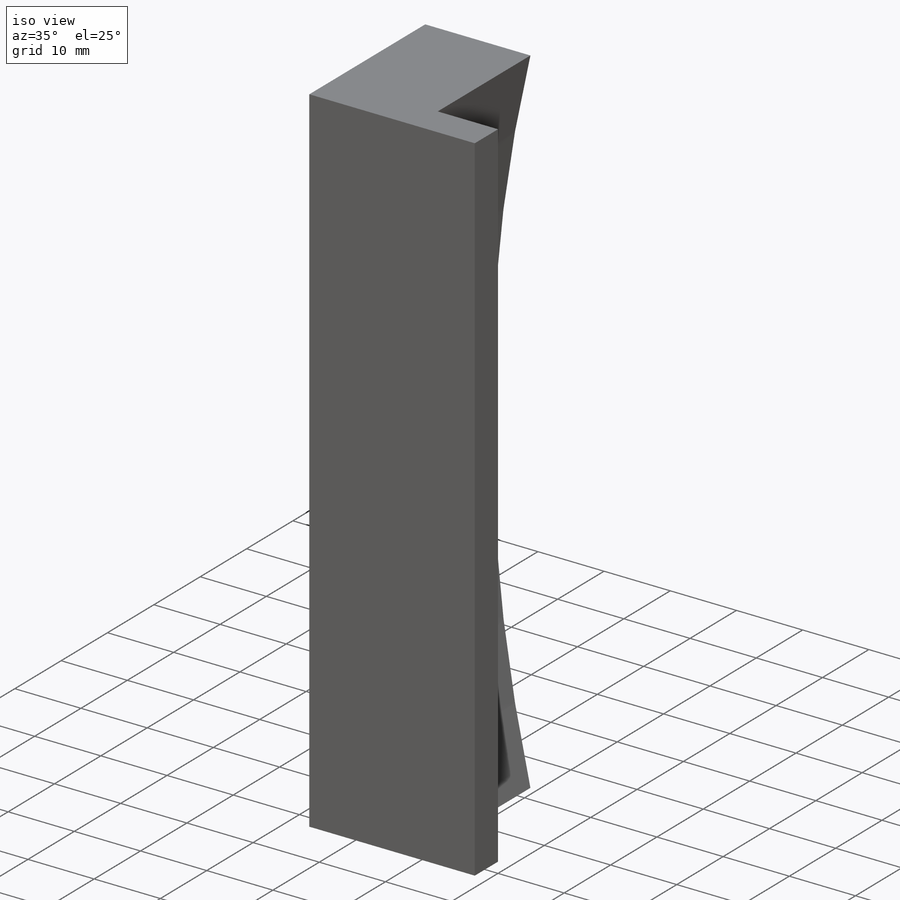
[diagram: iso view]
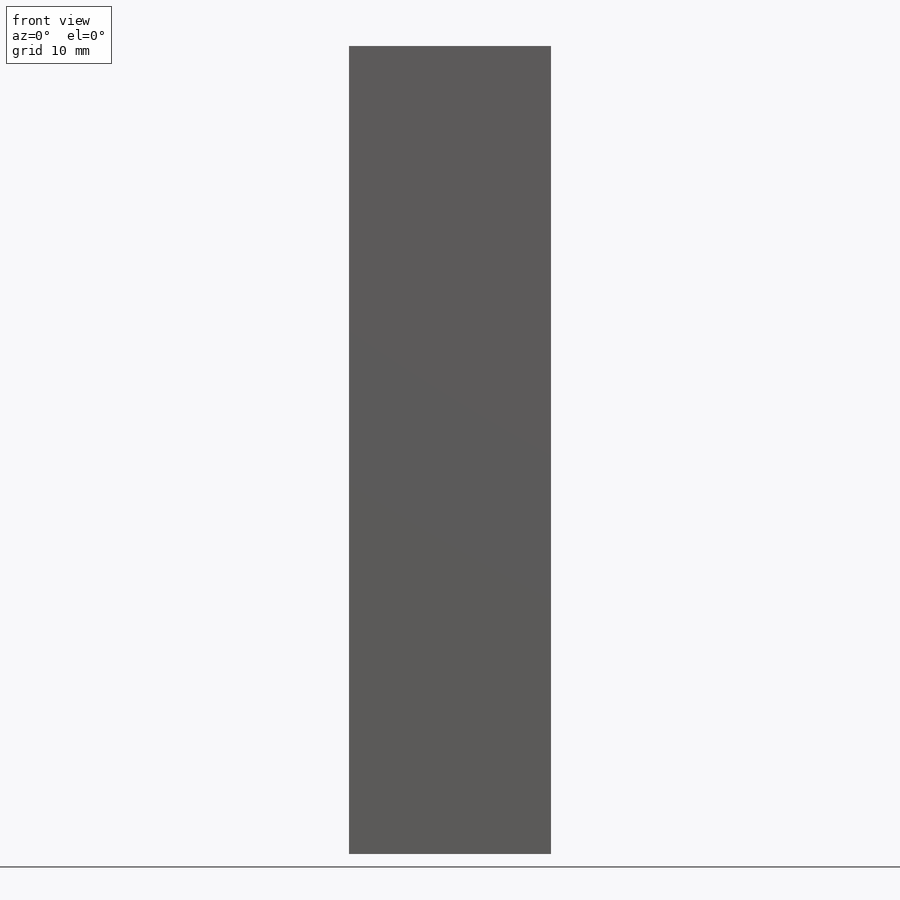
[diagram: front view]
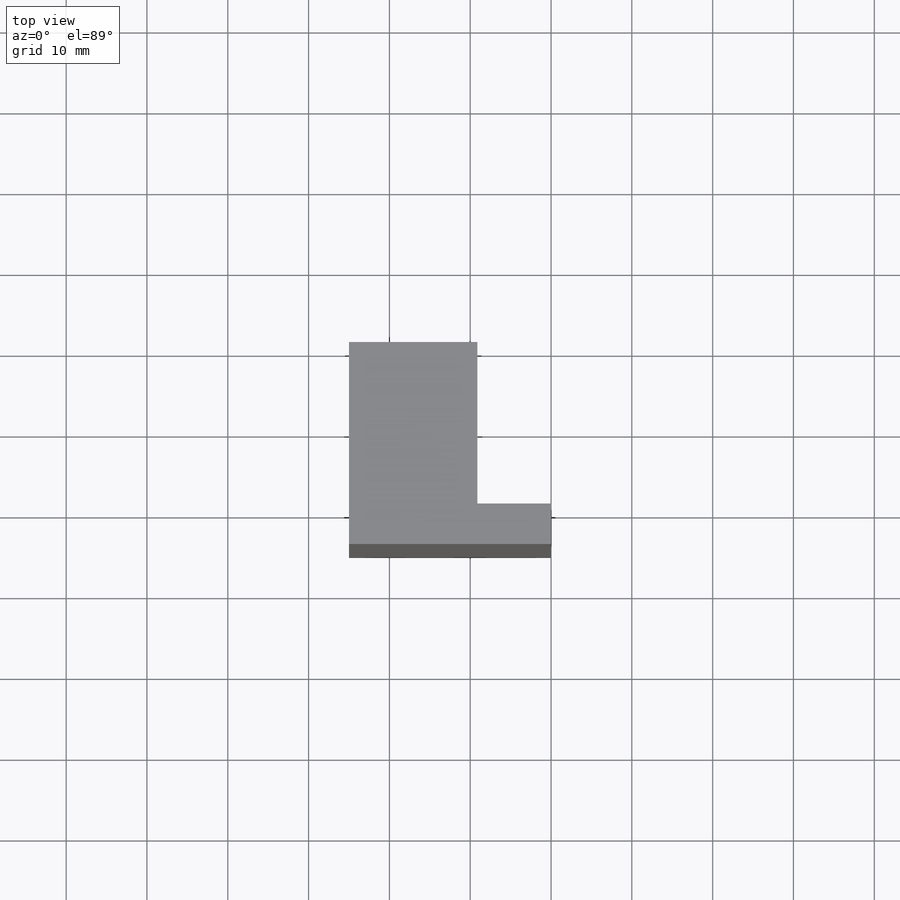
[diagram: top view]
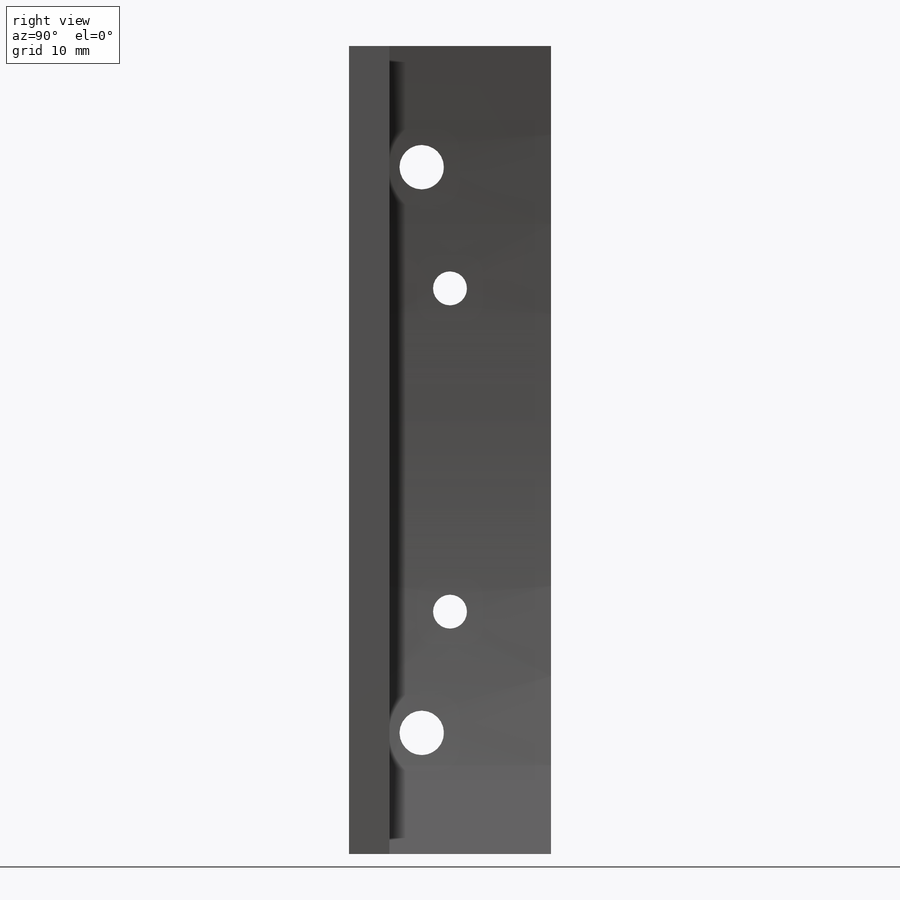
[diagram: right view]
SOLIDWORKS PART (.sldprt)
format: sldprt  version: not decoded by parser v0  size: 269,824 bytes
history: native  units: mm
features: sketch x8, plane x3, hole x3, extrude x2, thread x2, material x1 (+13 scaffold rows collapsed)
feature tree (32):
  scaffold x13  (default folders/planes/origin — collapsed)
  material  "3.1325 (EN-AW 2017A)"
  plane  "Plan de face"
  plane  "Plan de dessus"
  plane  "Plan de droite"
  sketch  "Esquisse1"  dims[D1=50.0mm D2=100.0mm D3=225.0mm]
  extrude  "Boss.-Extru.1"  Depth=20mm
  sketch  "Esquisse9"  dims[D1=25.0mm]
  extrude  "Boss.-Extru.2"  Depth=5mm
  hole  "Chambrage pour vis à tête hexagonale M53"  Diameter=5.5mm Depth=25.000025mm
  sketch  "Esquisse11"  dims[D1=35.0mm D2=16.0mm]
  sketch  "Esquisse10"  dims[hole-wizard template sketch: 42 standard entries collapsed; hole parameters kept: c12.Profondeur du perçage jusqu'au prochain=~25.000025mm c12.Diamètre du chambrage=10.0mm c12.Profondeur du chambrage=5.0mm]
  hole  "Chambrage pour vis à tête hexagonale M54"  Diameter=5.5mm Depth=25.000025mm
  sketch  "Esquisse13"  dims[D1=16.0mm D2=15.0mm]
  sketch  "Esquisse12"  dims[hole-wizard template sketch: 42 standard entries collapsed; hole parameters kept: c12.Profondeur du perçage jusqu'au prochain=~25.000025mm c12.Diamètre du chambrage=10.0mm c12.Profondeur du chambrage=5.0mm]
  hole  "Trou taraudé M52"  Diameter=4.2mm Depth=25.000025mm
  sketch  "Esquisse17"  dims[D1=12.5mm D2=20.0mm D3=20.0mm D4=12.5mm]
  sketch  "Esquisse16"  dims[hole-wizard template sketch: 60 standard entries collapsed; hole parameters kept: c18.Profondeur du trou pour taraudage jusqu'au prochain=~25.000025mm]
  thread  "Filetage de perçage4"  Diameter=5mm  [1 undecoded]
  thread  "Filetage de perçage5"  Diameter=5mm  [1 undecoded]
decode coverage: 15 of 15 modeling features carry decoded parameters
note: ~ marks probable driven/reference dimensions
note: 2 parameter values undecoded
note: suppression state not decoded; provenance and decode notes live in map.json
